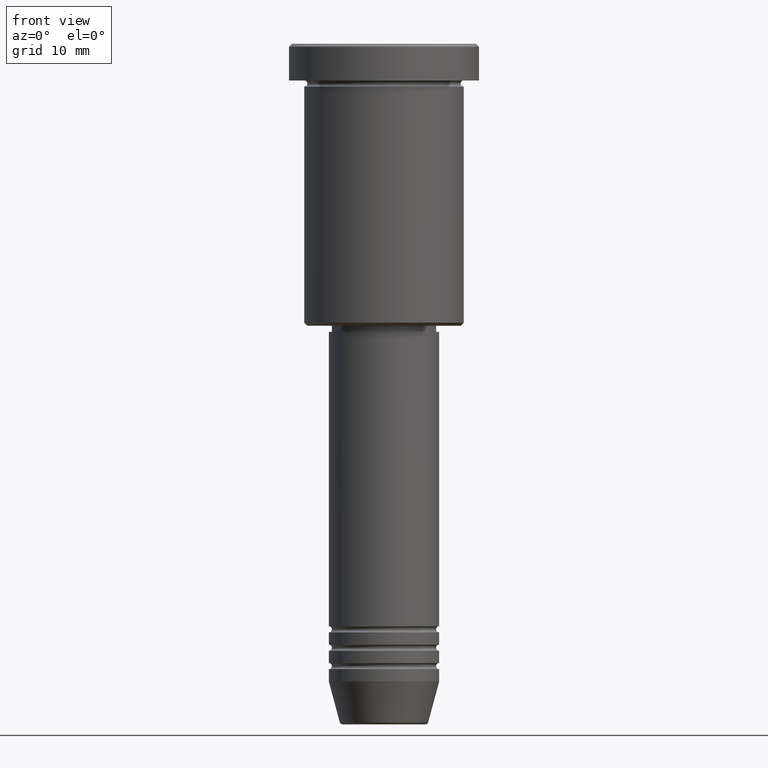
[diagram: clean part render]
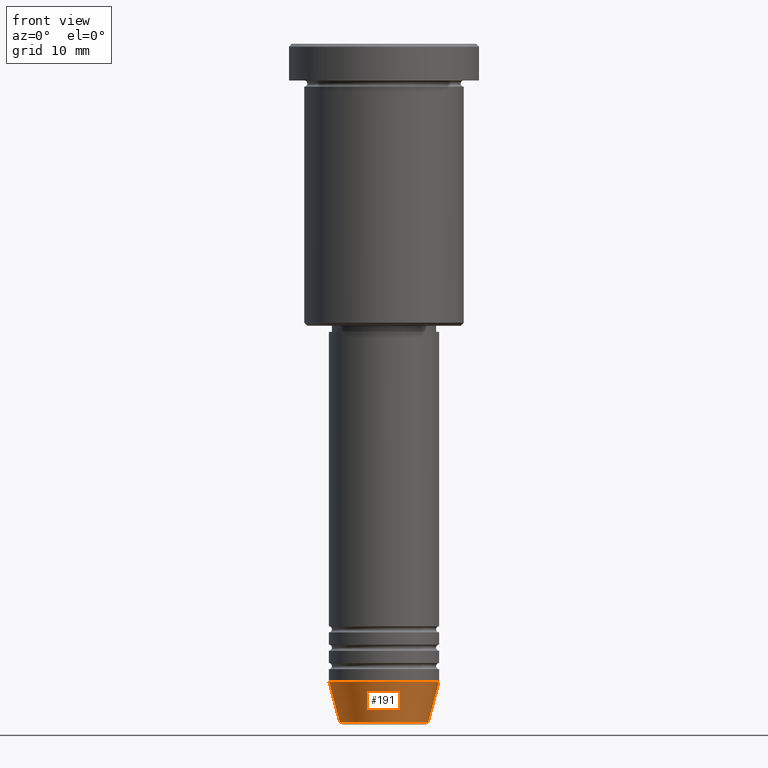
[diagram: same view with one face highlighted and labeled with its STEP entity id]
A machine part, front view. The second image highlights one B-rep face of the part: STEP entity #191.
In plain terms, the highlighted conical surface has half-angle 15 deg.
Its self-contained STEP definition (entity closure, byte-faithful):
#3 = VECTOR ( 'NONE', #919, 1000.000000000000000 ) ;
#40 = CARTESIAN_POINT ( 'NONE',  ( -9.000000000000000000, 1.102182119232617714E-15, -104.0000000000000142 ) ) ;
#50 = ORIENTED_EDGE ( 'NONE', *, *, #844, .F. ) ;
#95 = EDGE_CURVE ( 'NONE', #659, #994, #998, .T. ) ;
#188 = CARTESIAN_POINT ( 'NONE',  ( -7.223655072137198374, 9.934123627281771026E-16, -110.6294095225512564 ) ) ;
#191 = ADVANCED_FACE ( 'NONE', ( #518 ), #570, .T. ) ;
#287 = CARTESIAN_POINT ( 'NONE',  ( 7.223655072137197486, 0.000000000000000000, -110.6294095225512564 ) ) ;
#401 = CIRCLE ( 'NONE', #837, 7.223655072137197486 ) ;
#408 = EDGE_CURVE ( 'NONE', #1010, #1003, #401, .T. ) ;
#420 = DIRECTION ( 'NONE',  ( -0.000000000000000000, -0.000000000000000000, 1.000000000000000000 ) ) ;
#518 = FACE_OUTER_BOUND ( 'NONE', #1045, .T. ) ;
#523 = ORIENTED_EDGE ( 'NONE', *, *, #408, .T. ) ;
#570 = CONICAL_SURFACE ( 'NONE', #854, 9.000000000000000000, 0.2617993877991500740 ) ;
#576 = DIRECTION ( 'NONE',  ( -0.000000000000000000, -0.000000000000000000, 1.000000000000000000 ) ) ;
#585 = CARTESIAN_POINT ( 'NONE',  ( 9.000000000000000000, 0.000000000000000000, -104.0000000000000142 ) ) ;
#622 = CARTESIAN_POINT ( 'NONE',  ( -9.000000000000000000, 1.102182119232617714E-15, -104.0000000000000142 ) ) ;
#659 = VERTEX_POINT ( 'NONE', #40 ) ;
#675 = CARTESIAN_POINT ( 'NONE',  ( 9.000000000000000000, 0.000000000000000000, -104.0000000000000142 ) ) ;
#813 = LINE ( 'NONE', #622, #950 ) ;
#814 = DIRECTION ( 'NONE',  ( 1.000000000000000000, 0.000000000000000000, 0.000000000000000000 ) ) ;
#826 = CARTESIAN_POINT ( 'NONE',  ( 0.000000000000000000, 0.000000000000000000, -110.6294095225512564 ) ) ;
#837 = AXIS2_PLACEMENT_3D ( 'NONE', #826, #989, #814 ) ;
#844 = EDGE_CURVE ( 'NONE', #1010, #659, #813, .T. ) ;
#853 = CARTESIAN_POINT ( 'NONE',  ( 0.000000000000000000, 0.000000000000000000, -104.0000000000000142 ) ) ;
#854 = AXIS2_PLACEMENT_3D ( 'NONE', #1043, #420, #890 ) ;
#890 = DIRECTION ( 'NONE',  ( 1.000000000000000000, 0.000000000000000000, 0.000000000000000000 ) ) ;
#899 = ORIENTED_EDGE ( 'NONE', *, *, #95, .F. ) ;
#908 = AXIS2_PLACEMENT_3D ( 'NONE', #853, #576, #1012 ) ;
#919 = DIRECTION ( 'NONE',  ( 0.2588190451025213501, 0.000000000000000000, 0.9659258262890680902 ) ) ;
#950 = VECTOR ( 'NONE', #1163, 1000.000000000000000 ) ;
#989 = DIRECTION ( 'NONE',  ( -0.000000000000000000, -0.000000000000000000, 1.000000000000000000 ) ) ;
#994 = VERTEX_POINT ( 'NONE', #675 ) ;
#998 = CIRCLE ( 'NONE', #908, 9.000000000000000000 ) ;
#1001 = EDGE_CURVE ( 'NONE', #1003, #994, #1027, .T. ) ;
#1003 = VERTEX_POINT ( 'NONE', #287 ) ;
#1008 = ORIENTED_EDGE ( 'NONE', *, *, #1001, .T. ) ;
#1010 = VERTEX_POINT ( 'NONE', #188 ) ;
#1012 = DIRECTION ( 'NONE',  ( 1.000000000000000000, 0.000000000000000000, 0.000000000000000000 ) ) ;
#1027 = LINE ( 'NONE', #585, #3 ) ;
#1043 = CARTESIAN_POINT ( 'NONE',  ( 0.000000000000000000, 0.000000000000000000, -104.0000000000000142 ) ) ;
#1045 = EDGE_LOOP ( 'NONE', ( #50, #523, #1008, #899 ) ) ;
#1163 = DIRECTION ( 'NONE',  ( -0.2588190451025213501, 3.169619151431772337E-17, 0.9659258262890680902 ) ) ;